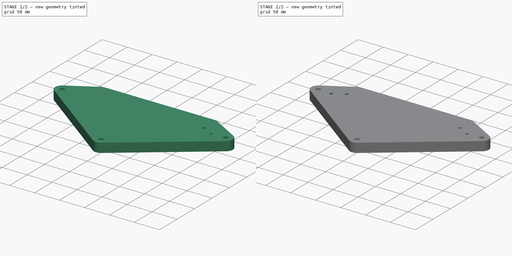
[diagram: build sequence overview — one tinted view per stage of 2, left to right]
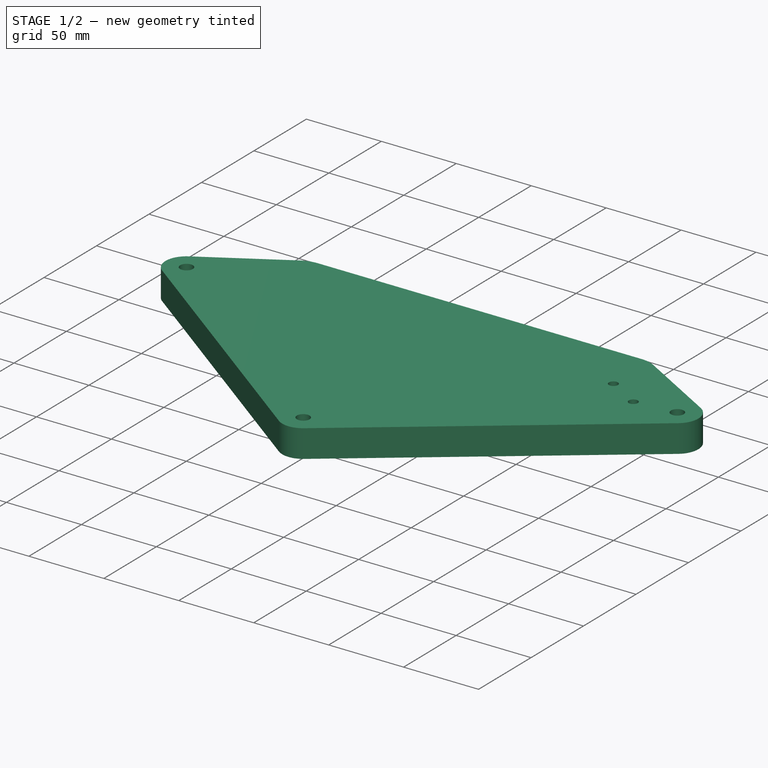
[diagram: stage 1 of 2 — iso view after this stage's code; geometry added in this stage tinted green]
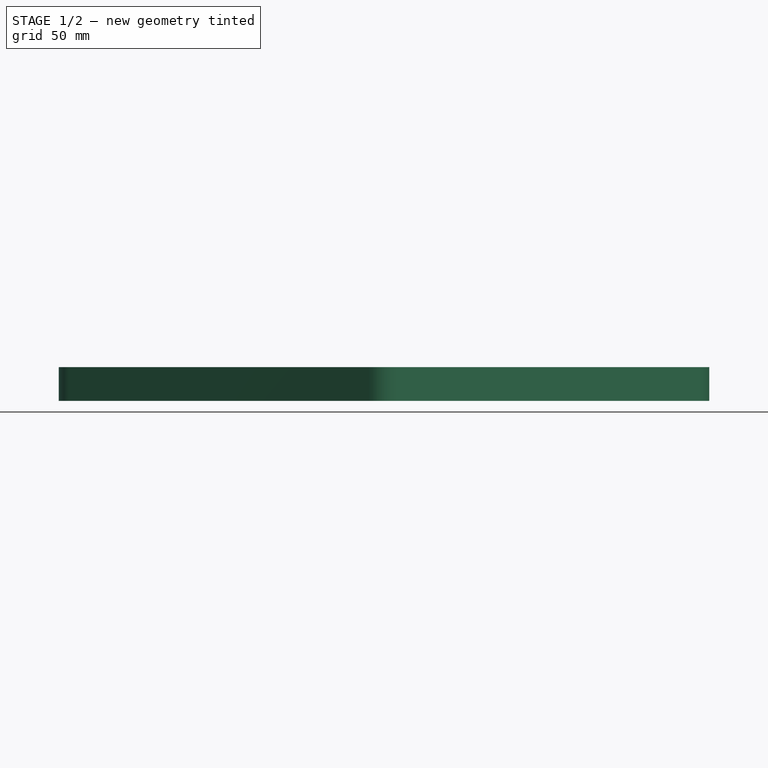
[diagram: stage 1 of 2 — front view after this stage's code; geometry added in this stage tinted green]
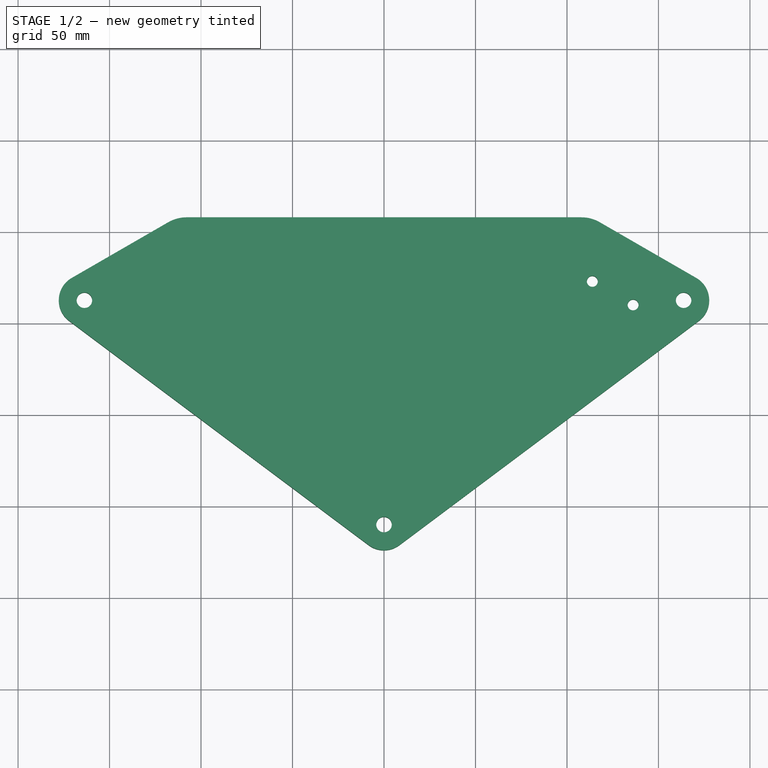
[diagram: stage 1 of 2 — top view after this stage's code; geometry added in this stage tinted green]
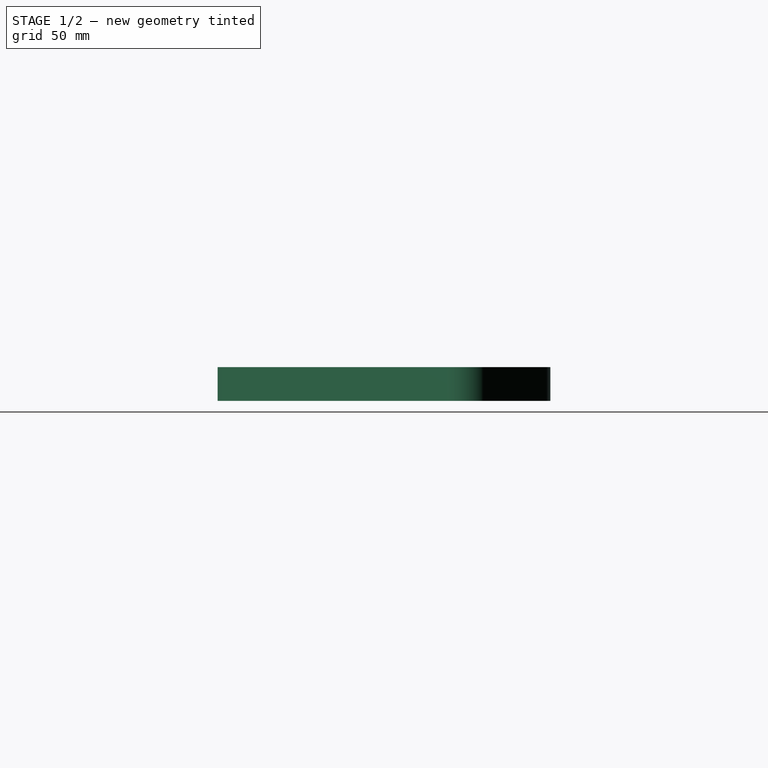
[diagram: stage 1 of 2 — right view after this stage's code; geometry added in this stage tinted green]
FCSTD DOCUMENT  (FreeCAD 0.20R29410 (Git))
Label: DrivePlatform
License: All rights reserved
LicenseURL: http://en.wikipedia.org/wiki/All_rights_reserved
objects: App::DocumentObjectGroup×3, Sketcher::SketchObject×2, PartDesign::CoordinateSystem×1, App::FeaturePython×1, PartDesign::Pad×1, PartDesign::Pocket×1, PartDesign::Mirrored×1, PartDesign::Body×1, App::Part×1
note: 9 computed .brp shape members not serialized (recipe doc carries the construction recipe); baked Part::Feature solids carry a one-line shape summary decoded from their .brp
EXTERNAL_REF file=Params.FCStd obj=Spreadsheet

FEATURE [App::DocumentObjectGroup] Parts
FEATURE [PartDesign::CoordinateSystem] LCS_Origin
  AttacherType = Attacher::AttachEngine3D
  MapMode = 2
  Support = -> [X_Axis]
FEATURE [App::FeaturePython] Variables  # WARN: FeaturePython — macro-defined, semantics opaque (R4)
  Type = App::PropertyContainer
FEATURE [App::DocumentObjectGroup] Constraints
FEATURE [App::DocumentObjectGroup] Configurations
FEATURE [Sketcher::SketchObject] Sketch
  FullyConstrained = true
  MapMode = 5
  Support = -> [XY_Plane001]
  expr: Constraints[26] = <<Params>>#<<Params>>.DriveRadius
  expr: Constraints[43] = <<Params>>#<<Params>>.DriveAdjMiddleOffset
  expr: Constraints[5] = <<Params>>#<<Params>>.DriveUnitAngle
  sketch-geometry (20):
    g0: LineSegment StartX=-170.744 StartY=224.737 StartZ=0 EndX=-117.916 EndY=255.237 EndZ=0
    g1: LineSegment StartX=-107.916 StartY=257.917 StartZ=0 EndX=107.916 EndY=257.917 EndZ=0
    g2: LineSegment StartX=172.135 StartY=201.406 StartZ=0 EndX=8.39145 EndY=78.7936 EndZ=0
    g3: LineSegment StartX=-8.39145 StartY=78.7936 StartZ=0 EndX=-172.135 EndY=201.406 EndZ=0
    g4: ArcOfCircle CenterX=107.916 CenterY=237.917 CenterZ=0 NormalX=0 NormalY=0 NormalZ=1 AngleXU=0 Radius=20 StartAngle=1.0472 EndAngle=1.5708
    g5: ArcOfCircle CenterX=163.744 CenterY=212.613 CenterZ=0 NormalX=0 NormalY=0 NormalZ=1 AngleXU=0 Radius=14 StartAngle=5.35513 EndAngle=7.33038
    g6: GeomPoint X=0 Y=257.917 Z=0
    g7: LineSegment StartX=140 StartY=242.487 StartZ=0 EndX=0 EndY=0 EndZ=0
    g8: Circle CenterX=163.744 CenterY=212.613 CenterZ=0 NormalX=0 NormalY=0 NormalZ=1 AngleXU=0 Radius=4.25
    g9: LineSegment StartX=162.084 StartY=229.737 StartZ=0 EndX=136.584 EndY=185.57 EndZ=0
    g10: LineSegment StartX=136.584 StartY=185.57 StartZ=0 EndX=92.4164 EndY=211.07 EndZ=0
    g11: LineSegment StartX=92.4164 StartY=211.07 StartZ=0 EndX=117.916 EndY=255.237 EndZ=0
    g12: Circle CenterX=163.744 CenterY=212.613 CenterZ=0 NormalX=0 NormalY=0 NormalZ=1 AngleXU=0 Radius=8
    g13: Circle CenterX=-163.744 CenterY=212.613 CenterZ=0 NormalX=0 NormalY=0 NormalZ=1 AngleXU=0 Radius=4.25
    g14: Circle CenterX=0 CenterY=90 CenterZ=0 NormalX=0 NormalY=0 NormalZ=1 AngleXU=0 Radius=4.25
    g15: LineSegment StartX=117.916 StartY=255.237 StartZ=0 EndX=170.744 EndY=224.737 EndZ=0
    g16: ArcOfCircle CenterX=-107.916 CenterY=237.917 CenterZ=0 NormalX=0 NormalY=0 NormalZ=1 AngleXU=0 Radius=20 StartAngle=1.5708 EndAngle=2.0944
    g17: ArcOfCircle CenterX=-163.744 CenterY=212.613 CenterZ=0 NormalX=0 NormalY=0 NormalZ=1 AngleXU=0 Radius=14 StartAngle=2.0944 EndAngle=4.06965
    g18: ArcOfCircle CenterX=0 CenterY=90 CenterZ=0 NormalX=0 NormalY=0 NormalZ=1 AngleXU=0 Radius=14 StartAngle=4.06965 EndAngle=5.35513
    g19: LineSegment StartX=163.744 StartY=212.613 StartZ=0 EndX=155.084 EndY=217.613 EndZ=0
  constraints (50):
    c: PointOnObject(g6,g-2)
    c: Tangent(g2,g5) = 1.5708
    c: Radius(g4) = 20
    c: Radius(g5) = 14
    c: Equal(g3,g2)
    c: Angle(g7,g-2) = 0.523599
    c: Tangent(g1,g4) = 1.5708
    c: Horizontal(g1)
    c: Symmetric(g1,g1,g6)
    c: Coincident(g8,g5)
    c: Diameter(g8) = 8.5
    c: Parallel(g9,g7)
    c: Coincident(g10,g9)
    c: Coincident(g11,g10)
    c: Parallel(g11,g9)
    c: Perpendicular(g9,g10)
    c: Distance(g9) = 51
    c: Equal(g9,g10)
    c: Coincident(g12,g5)
    c: Diameter(g12) = 16
    c: Equal(g13,g8)
    c: Equal(g14,g8)
    c: Tangent(g15,g5) = 1.5708
    c: Tangent(g15,g4) = 1.5708
    c: Coincident(g11,g4)
    c: PointOnObject(g9,g15)
    c: Distance(g7) = 280
    c: Coincident(g7,g-1)
    c: Equal(g9,g11)
    c: Tangent(g16,g1) = 1.5708
    c: Tangent(g16,g0) = 1.5708
    c: Coincident(g17,g13)
    c: Tangent(g17,g0) = 1.5708
    c: Tangent(g17,g3) = 1.5708
    c: Tangent(g18,g2) = 1.5708
    c: Tangent(g18,g3) = 1.5708
    c: Equal(g18,g5)
    c: Equal(g5,g17)
    c: Equal(g0,g15)
    c: Equal(g16,g4)
    c: Symmetric(g4,g9,g7)
    c: Coincident(g14,g18)
    c: PointOnObject(g14,g-2)
    c: DistanceY(g7,g14) = 90
    c: Coincident(g19,g5)
    c: PointOnObject(g19,g9)
    c: Perpendicular(g9,g19)
    c: Distance(g19) = 10
    c: DistanceX(g13,g5) = 327.488  'DriveAdjSpacingX'
    c: DistanceY(g14,g13) = 122.613  'DriveAdjSpacingY'
FEATURE [PartDesign::Pad] Pad
  Direction = (0,0,1)
  Length = 18.5
  Length2 = 10
  Profile = -> Sketch
  ReferenceAxis = -> Sketch [N_Axis]
  Type = 0
  expr: Length = <<Params>>#<<Params>>.PlywoodThickness
FEATURE [Sketcher::SketchObject] Sketch001
  FullyConstrained = true
  MapMode = 5
  Support = -> [XY_Plane001]
  expr: Constraints[0] = <<Params>>#<<Params>>.DriveUnitAngle
  expr: Constraints[1] = <<Params>>#<<Params>>.DriveRadius
  sketch-geometry (5):
    g0: LineSegment StartX=140 StartY=242.487 StartZ=0 EndX=0 EndY=0 EndZ=0
    g1: Circle CenterX=113.859 CenterY=222.939 CenterZ=0 NormalX=0 NormalY=0 NormalZ=1 AngleXU=0 Radius=3
    g2: Circle CenterX=136.141 CenterY=210.074 CenterZ=0 NormalX=0 NormalY=0 NormalZ=1 AngleXU=0 Radius=3
    g3: LineSegment StartX=113.859 StartY=222.939 StartZ=0 EndX=136.141 EndY=210.074 EndZ=0
    g4: GeomPoint X=125 Y=216.506 Z=0
  constraints (12):
    c: Angle(g0,g-2) = 0.523599
    c: Distance(g0) = 280
    c: Coincident(g0,g-1)
    c: Coincident(g3,g1)
    c: Coincident(g3,g2)
    c: Equal(g2,g1)
    c: Diameter(g1) = 6
    c: Symmetric(g2,g1,g4)
    c: PointOnObject(g4,g0)
    c: Perpendicular(g0,g3)
    c: Distance(g2,g4) = 12.865
    c: Distance(g4,g0) = 30
FEATURE [PartDesign::Pocket] Pocket  label="MotorMountHoles"
  BaseFeature = -> Pad
  Direction = (0,0,-1)
  Length = 5
  Length2 = 5
  Midplane = true
  Profile = -> Sketch001
  ReferenceAxis = -> Sketch001 [N_Axis]
  Type = 1
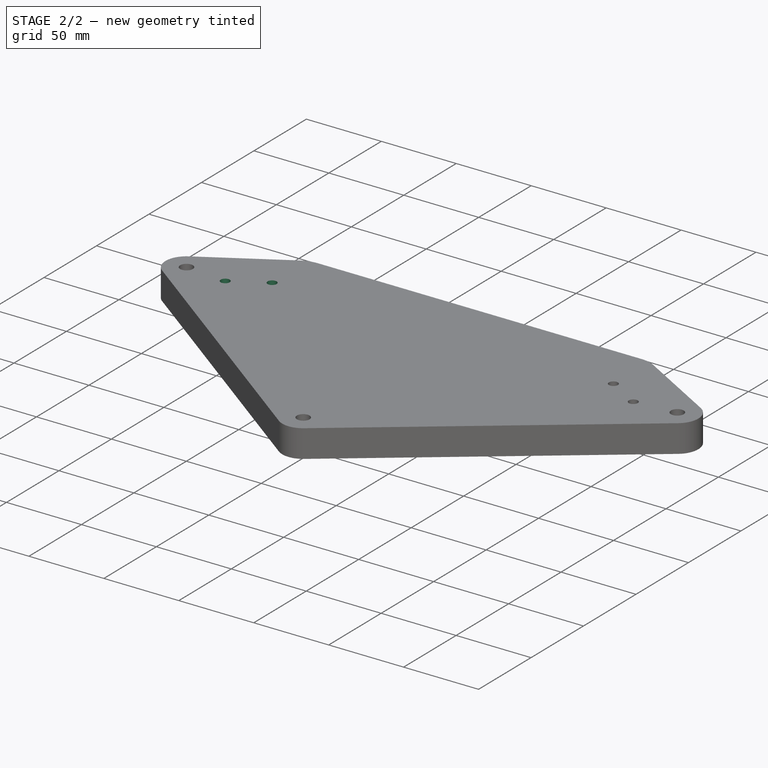
[diagram: stage 2 of 2 — iso view after this stage's code; geometry added in this stage tinted green]
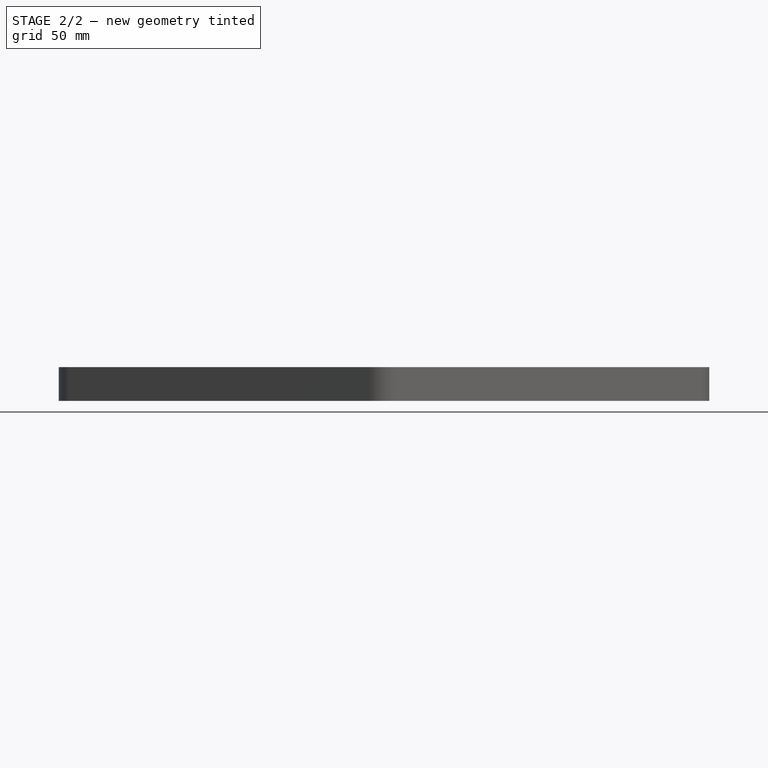
[diagram: stage 2 of 2 — front view after this stage's code; geometry added in this stage tinted green]
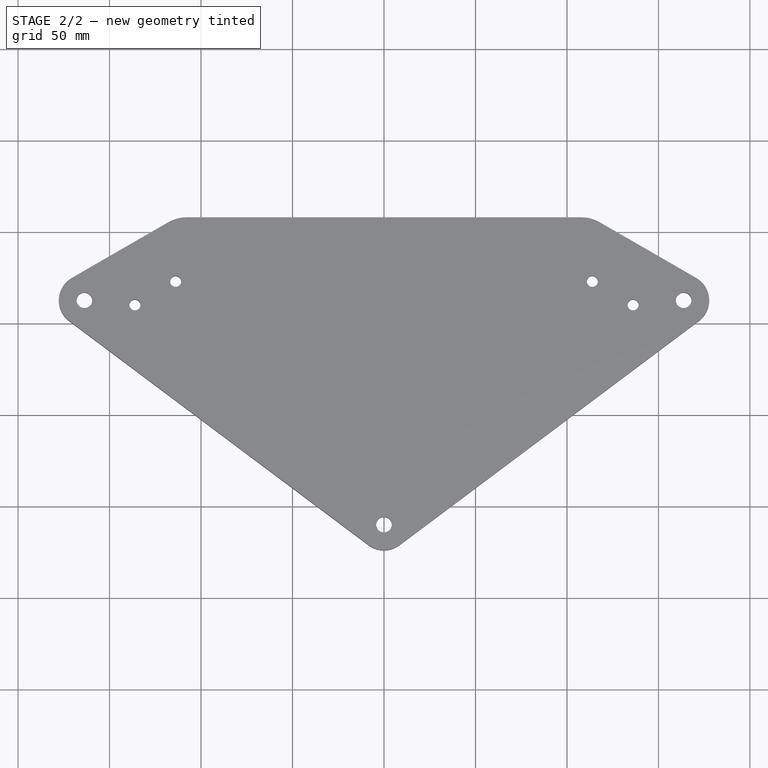
[diagram: stage 2 of 2 — top view after this stage's code; geometry added in this stage tinted green]
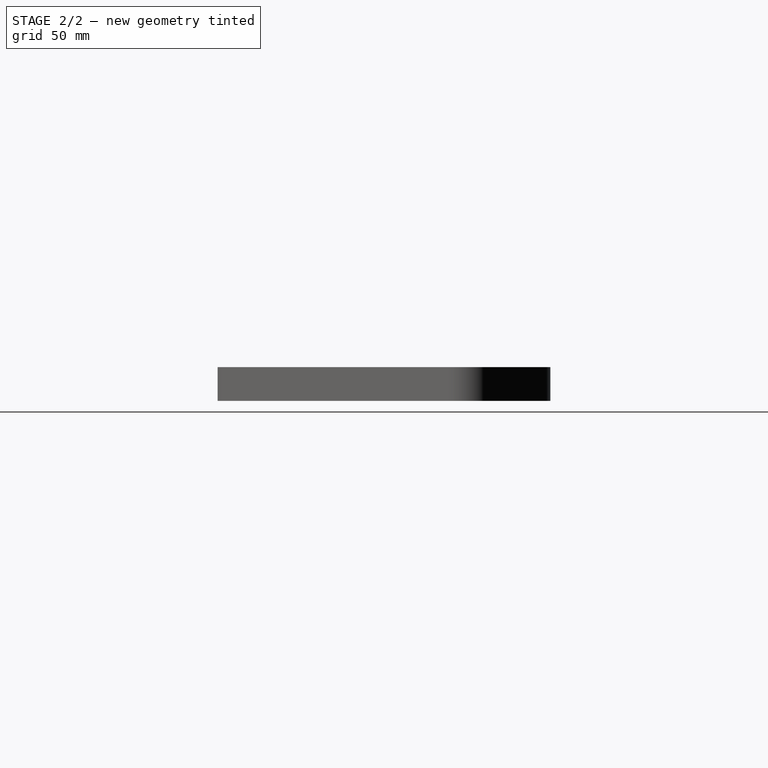
[diagram: stage 2 of 2 — right view after this stage's code; geometry added in this stage tinted green]
FEATURE [PartDesign::Mirrored] Mirrored  label="MotorMountHolesMirror"
  BaseFeature = -> Pocket
  MirrorPlane = -> Sketch001 [V_Axis]
  Originals = -> [Pocket]
FEATURE [PartDesign::Body] Body
  Group = -> [Sketch,Pad,Sketch001,Pocket,Mirrored]
  Origin = -> Origin001
  Tip = -> Mirrored
FEATURE [App::Part] Assembly
  AssemblyType = Part::Link
  Group = -> [LCS_Origin,Variables,Constraints,Configurations,Body]
  Origin = -> Origin
  Type = Assembly
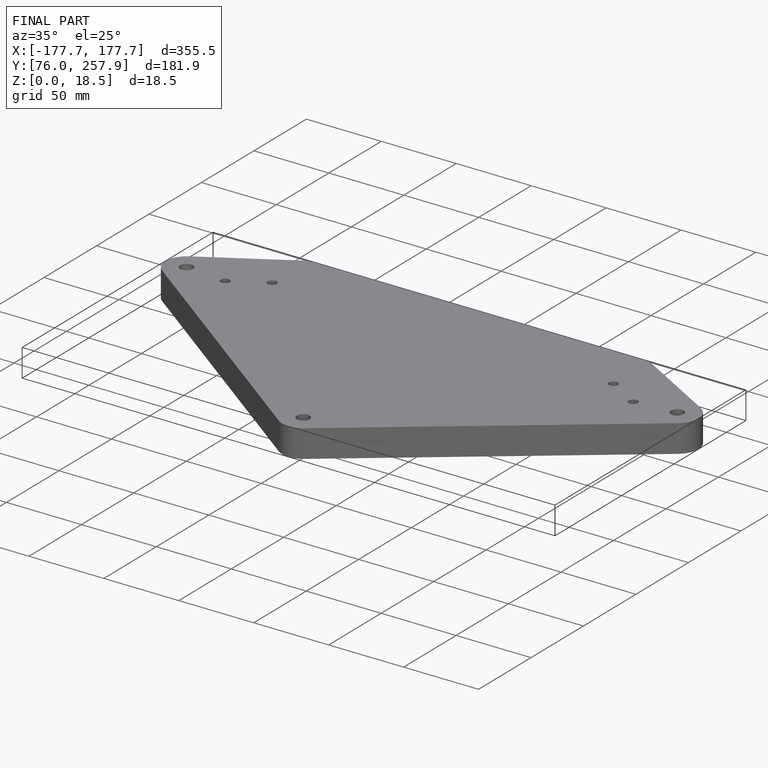
[diagram: finished part — iso view with bounding-box wireframe]
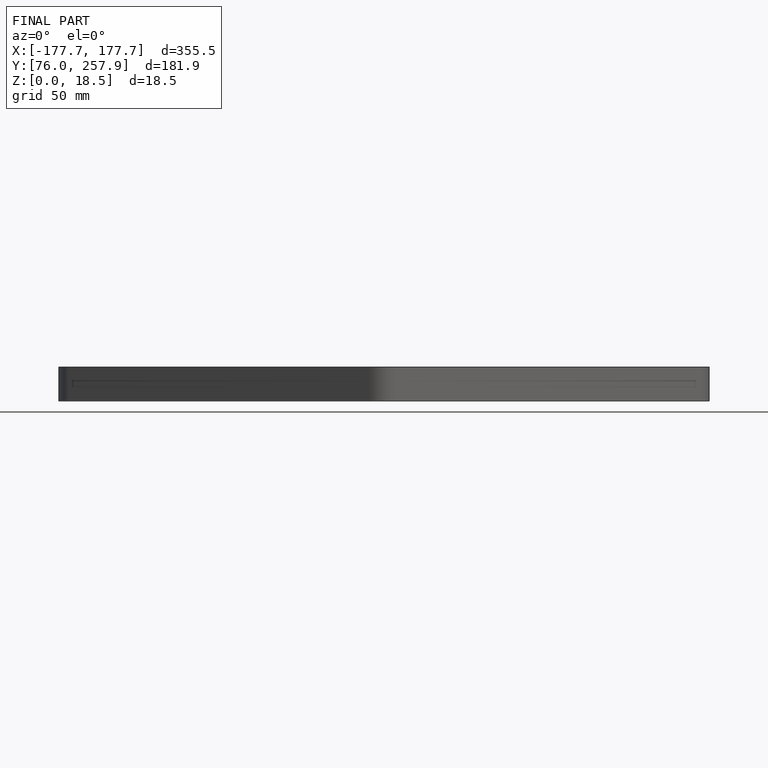
[diagram: finished part — front view with bounding-box wireframe]
